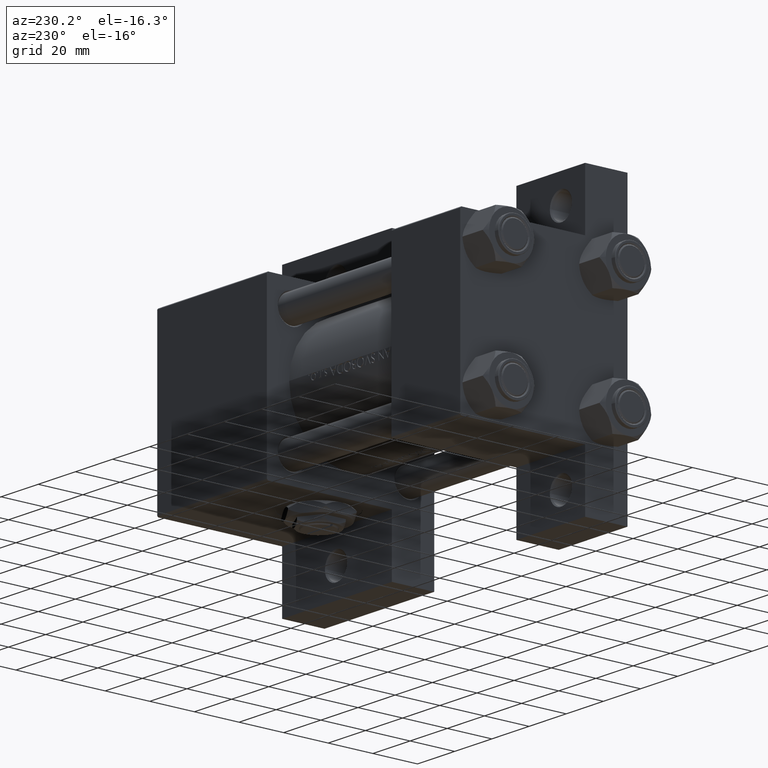
[diagram: clean part render]
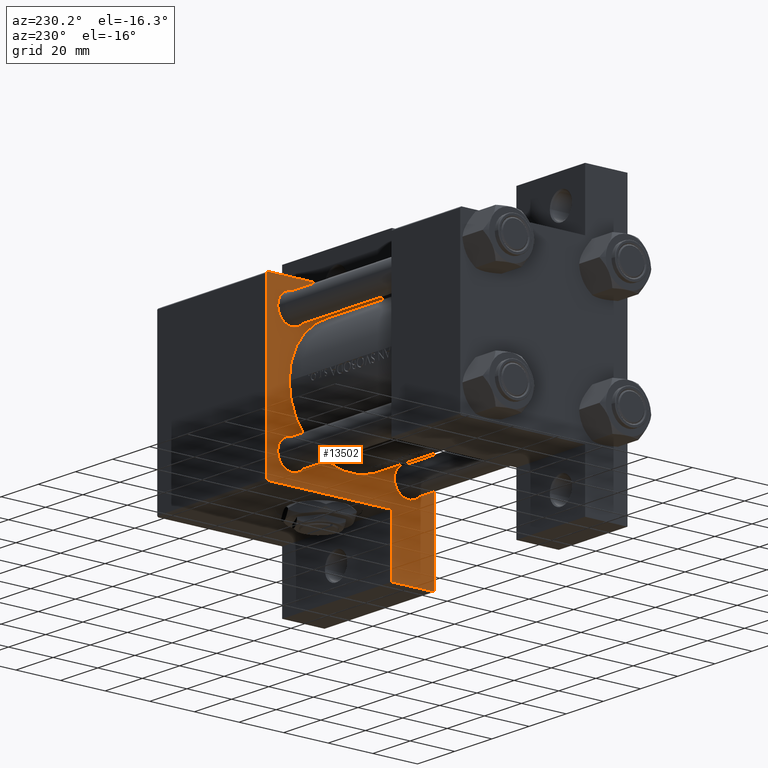
[diagram: same view with one face highlighted and labeled with its STEP entity id]
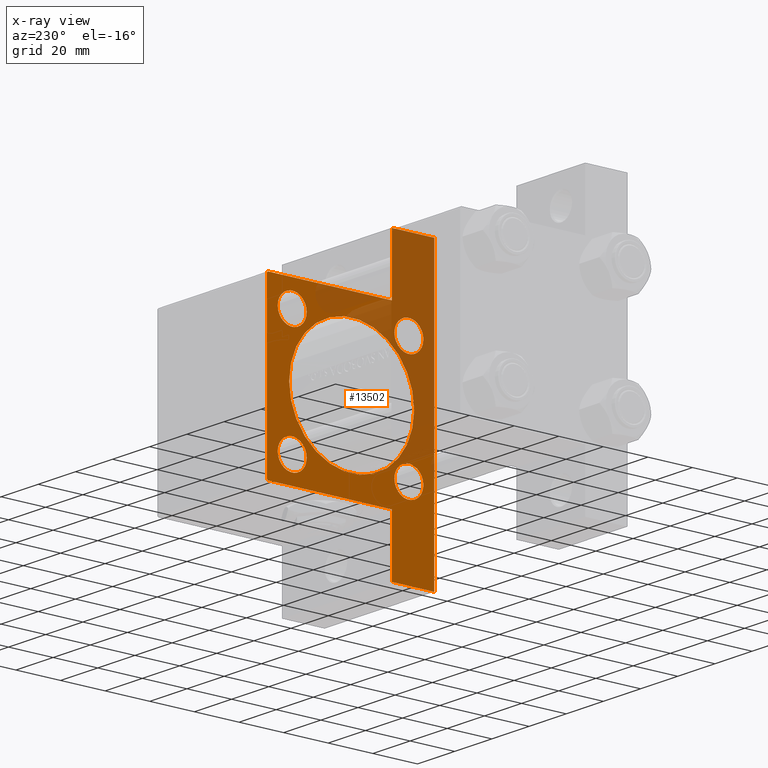
[diagram: x-ray of the same camera — body ghosted, the highlighted face saturated]
A machine part, auxiliary view. The second image highlights one B-rep face of the part: STEP entity #13502.
The next image is the same camera in x-ray: the body ghosted, the highlighted face saturated — about 40% of this face is hidden behind the body in this view.
In plain terms, the highlighted planar face has unit normal (-1, 0, 0).
Its self-contained STEP definition (entity closure, byte-faithful):
#288 = DIRECTION ( 'NONE',  ( 1.000000000000000000, 0.000000000000000000, 0.000000000000000000 ) ) ;
#1120 = CARTESIAN_POINT ( 'NONE',  ( 104.0000000000000142, 37.00000000000002842, 37.49999999999999289 ) ) ;
#1746 = ORIENTED_EDGE ( 'NONE', *, *, #34918, .T. ) ;
#1967 = AXIS2_PLACEMENT_3D ( 'NONE', #23735, #34689, #12039 ) ;
#2143 = DIRECTION ( 'NONE',  ( 1.000000000000000000, 0.000000000000000000, -0.000000000000000000 ) ) ;
#2283 = FACE_BOUND ( 'NONE', #34809, .T. ) ;
#2473 = EDGE_CURVE ( 'NONE', #14349, #3100, #16176, .T. ) ;
#2533 = CARTESIAN_POINT ( 'NONE',  ( 104.0000000000000000, -63.50000000000000000, -18.50000000000000000 ) ) ;
#3005 = FACE_OUTER_BOUND ( 'NONE', #15370, .T. ) ;
#3100 = VERTEX_POINT ( 'NONE', #19858 ) ;
#3102 = VERTEX_POINT ( 'NONE', #24087 ) ;
#3175 = CARTESIAN_POINT ( 'NONE',  ( 104.0000000000000142, 26.14999999999999858, 26.15000000000000213 ) ) ;
#4086 = LINE ( 'NONE', #33978, #27296 ) ;
#4807 = CARTESIAN_POINT ( 'NONE',  ( 104.0000000000000142, 3.429011037612589276E-15, -28.50000000000000000 ) ) ;
#4842 = CARTESIAN_POINT ( 'NONE',  ( 104.0000000000000142, -37.50000000000000000, 37.00000000000000711 ) ) ;
#5345 = EDGE_CURVE ( 'NONE', #3100, #14349, #40149, .T. ) ;
#6058 = AXIS2_PLACEMENT_3D ( 'NONE', #3175, #18364, #37056 ) ;
#6589 = DIRECTION ( 'NONE',  ( 0.000000000000000000, -9.251858538542972814E-17, -1.000000000000000000 ) ) ;
#6619 = AXIS2_PLACEMENT_3D ( 'NONE', #16638, #12419, #46777 ) ;
#6812 = CARTESIAN_POINT ( 'NONE',  ( 104.0000000000000142, -26.14999999999999147, 19.65000000000000213 ) ) ;
#6987 = FACE_BOUND ( 'NONE', #45550, .T. ) ;
#7343 = CARTESIAN_POINT ( 'NONE',  ( 104.0000000000000142, -26.14999999999999147, 32.65000000000001990 ) ) ;
#8072 = CARTESIAN_POINT ( 'NONE',  ( 104.0000000000000142, 37.50000000000000000, 37.49999999999999289 ) ) ;
#8896 = EDGE_CURVE ( 'NONE', #18962, #22449, #43593, .T. ) ;
#9163 = EDGE_CURVE ( 'NONE', #38671, #48142, #32297, .T. ) ;
#9365 = DIRECTION ( 'NONE',  ( -0.000000000000000000, 0.7071067811865671127, 0.7071067811865279218 ) ) ;
#9765 = ORIENTED_EDGE ( 'NONE', *, *, #34351, .T. ) ;
#9916 = EDGE_CURVE ( 'NONE', #18798, #10522, #29899, .T. ) ;
#9917 = CARTESIAN_POINT ( 'NONE',  ( 104.0000000000000142, 37.50000000000000000, 37.00000000000002132 ) ) ;
#10223 = ORIENTED_EDGE ( 'NONE', *, *, #8896, .T. ) ;
#10522 = VERTEX_POINT ( 'NONE', #19932 ) ;
#11776 = DIRECTION ( 'NONE',  ( 0.000000000000000000, 0.000000000000000000, 1.000000000000000000 ) ) ;
#11804 = DIRECTION ( 'NONE',  ( -0.000000000000000000, 1.000000000000000000, -0.000000000000000000 ) ) ;
#12039 = DIRECTION ( 'NONE',  ( 0.000000000000000000, 0.000000000000000000, 1.000000000000000000 ) ) ;
#12385 = VECTOR ( 'NONE', #43078, 1000.000000000000000 ) ;
#12419 = DIRECTION ( 'NONE',  ( 1.000000000000000000, 0.000000000000000000, -0.000000000000000000 ) ) ;
#13261 = AXIS2_PLACEMENT_3D ( 'NONE', #49105, #18959, #37643 ) ;
#13304 = AXIS2_PLACEMENT_3D ( 'NONE', #13728, #40380, #25658 ) ;
#13309 = VERTEX_POINT ( 'NONE', #15874 ) ;
#13502 = ADVANCED_FACE ( 'NONE', ( #17953, #2283, #48587, #6987, #47858, #3005 ), #18439, .T. ) ;
#13650 = DIRECTION ( 'NONE',  ( 0.000000000000000000, 0.000000000000000000, 1.000000000000000000 ) ) ;
#13728 = CARTESIAN_POINT ( 'NONE',  ( 104.0000000000000142, 0.000000000000000000, 0.000000000000000000 ) ) ;
#14003 = VERTEX_POINT ( 'NONE', #33093 ) ;
#14113 = AXIS2_PLACEMENT_3D ( 'NONE', #35246, #46707, #24536 ) ;
#14349 = VERTEX_POINT ( 'NONE', #32175 ) ;
#15370 = EDGE_LOOP ( 'NONE', ( #46414, #10223, #34709, #42178, #36198, #25460, #47398, #20462, #17750, #23469 ) ) ;
#15566 = AXIS2_PLACEMENT_3D ( 'NONE', #44520, #21122, #13650 ) ;
#15705 = CARTESIAN_POINT ( 'NONE',  ( 104.0000000000000142, -26.14999999999999147, -19.65000000000000213 ) ) ;
#15874 = CARTESIAN_POINT ( 'NONE',  ( 104.0000000000000000, -63.50000000000000000, -37.50000000000000000 ) ) ;
#15925 = ORIENTED_EDGE ( 'NONE', *, *, #2473, .T. ) ;
#16176 = CIRCLE ( 'NONE', #6619, 6.500000000000008882 ) ;
#16189 = EDGE_CURVE ( 'NONE', #28887, #28213, #40360, .T. ) ;
#16417 = EDGE_CURVE ( 'NONE', #36736, #27059, #32414, .T. ) ;
#16479 = CARTESIAN_POINT ( 'NONE',  ( 104.0000000000000142, 37.50000000000000000, -18.50000000000000355 ) ) ;
#16638 = CARTESIAN_POINT ( 'NONE',  ( 104.0000000000000142, 26.14999999999999858, -26.15000000000000213 ) ) ;
#17750 = ORIENTED_EDGE ( 'NONE', *, *, #29962, .F. ) ;
#17799 = LINE ( 'NONE', #32998, #19204 ) ;
#17953 = FACE_BOUND ( 'NONE', #28343, .T. ) ;
#18193 = CARTESIAN_POINT ( 'NONE',  ( 104.0000000000000142, 63.50000000000000000, -18.50000000000000000 ) ) ;
#18364 = DIRECTION ( 'NONE',  ( 1.000000000000000000, 0.000000000000000000, -0.000000000000000000 ) ) ;
#18439 = PLANE ( 'NONE',  #13304 ) ;
#18798 = VERTEX_POINT ( 'NONE', #34259 ) ;
#18959 = DIRECTION ( 'NONE',  ( 1.000000000000000000, 0.000000000000000000, -0.000000000000000000 ) ) ;
#18962 = VERTEX_POINT ( 'NONE', #1120 ) ;
#19204 = VECTOR ( 'NONE', #6589, 1000.000000000000000 ) ;
#19858 = CARTESIAN_POINT ( 'NONE',  ( 104.0000000000000142, 26.14999999999999858, -19.64999999999999503 ) ) ;
#19932 = CARTESIAN_POINT ( 'NONE',  ( 104.0000000000000142, 26.14999999999999858, 32.65000000000000568 ) ) ;
#20080 = EDGE_CURVE ( 'NONE', #43393, #36736, #30729, .T. ) ;
#20462 = ORIENTED_EDGE ( 'NONE', *, *, #39869, .T. ) ;
#20882 = AXIS2_PLACEMENT_3D ( 'NONE', #29274, #2143, #21315 ) ;
#20929 = CARTESIAN_POINT ( 'NONE',  ( 104.0000000000000142, 37.25000000000000711, 37.25000000000000711 ) ) ;
#21122 = DIRECTION ( 'NONE',  ( 1.000000000000000000, 0.000000000000000000, -0.000000000000000000 ) ) ;
#21315 = DIRECTION ( 'NONE',  ( 0.000000000000000000, 0.000000000000000000, 1.000000000000000000 ) ) ;
#22083 = CARTESIAN_POINT ( 'NONE',  ( 104.0000000000000000, -63.50000000000000000, -18.50000000000000000 ) ) ;
#22221 = LINE ( 'NONE', #44650, #48086 ) ;
#22449 = VERTEX_POINT ( 'NONE', #9917 ) ;
#22464 = ORIENTED_EDGE ( 'NONE', *, *, #16189, .T. ) ;
#22771 = LINE ( 'NONE', #8072, #33482 ) ;
#22833 = EDGE_CURVE ( 'NONE', #24463, #37691, #43471, .T. ) ;
#22877 = EDGE_LOOP ( 'NONE', ( #33673, #15925 ) ) ;
#23245 = ORIENTED_EDGE ( 'NONE', *, *, #27204, .T. ) ;
#23469 = ORIENTED_EDGE ( 'NONE', *, *, #22833, .T. ) ;
#23735 = CARTESIAN_POINT ( 'NONE',  ( 104.0000000000000142, 26.14999999999999858, -26.15000000000000213 ) ) ;
#24062 = DIRECTION ( 'NONE',  ( 1.000000000000000000, 0.000000000000000000, -0.000000000000000000 ) ) ;
#24087 = CARTESIAN_POINT ( 'NONE',  ( 104.0000000000000142, -37.50000000000000000, -18.50000000000000000 ) ) ;
#24463 = VERTEX_POINT ( 'NONE', #4842 ) ;
#24536 = DIRECTION ( 'NONE',  ( 0.000000000000000000, 0.000000000000000000, -1.000000000000000000 ) ) ;
#24828 = CARTESIAN_POINT ( 'NONE',  ( 104.0000000000000142, 63.50000000000000000, -37.50000000000000000 ) ) ;
#24904 = EDGE_CURVE ( 'NONE', #18962, #37691, #22771, .T. ) ;
#24927 = CIRCLE ( 'NONE', #31301, 6.500000000000008882 ) ;
#25460 = ORIENTED_EDGE ( 'NONE', *, *, #34632, .T. ) ;
#25658 = DIRECTION ( 'NONE',  ( 0.000000000000000000, 0.000000000000000000, 1.000000000000000000 ) ) ;
#26121 = VECTOR ( 'NONE', #36640, 1000.000000000000000 ) ;
#26471 = CIRCLE ( 'NONE', #30467, 28.00000000000000000 ) ;
#26863 = ORIENTED_EDGE ( 'NONE', *, *, #31887, .T. ) ;
#27059 = VERTEX_POINT ( 'NONE', #24828 ) ;
#27172 = DIRECTION ( 'NONE',  ( 0.000000000000000000, 0.000000000000000000, -1.000000000000000000 ) ) ;
#27204 = EDGE_CURVE ( 'NONE', #10522, #18798, #47860, .T. ) ;
#27296 = VECTOR ( 'NONE', #34458, 1000.000000000000000 ) ;
#27310 = EDGE_CURVE ( 'NONE', #33376, #13309, #36419, .T. ) ;
#28213 = VERTEX_POINT ( 'NONE', #36666 ) ;
#28343 = EDGE_LOOP ( 'NONE', ( #9765, #30917 ) ) ;
#28887 = VERTEX_POINT ( 'NONE', #4807 ) ;
#29274 = CARTESIAN_POINT ( 'NONE',  ( 104.0000000000000142, -26.14999999999999147, -26.15000000000000924 ) ) ;
#29899 = CIRCLE ( 'NONE', #6058, 6.499999999999995559 ) ;
#29962 = EDGE_CURVE ( 'NONE', #24463, #3102, #17799, .T. ) ;
#30252 = DIRECTION ( 'NONE',  ( 0.000000000000000000, -1.000000000000000000, -1.850371707708594316E-16 ) ) ;
#30354 = VECTOR ( 'NONE', #47874, 1000.000000000000000 ) ;
#30467 = AXIS2_PLACEMENT_3D ( 'NONE', #38643, #288, #27172 ) ;
#30729 = LINE ( 'NONE', #45930, #34879 ) ;
#30917 = ORIENTED_EDGE ( 'NONE', *, *, #9163, .T. ) ;
#31301 = AXIS2_PLACEMENT_3D ( 'NONE', #47726, #24062, #47472 ) ;
#31817 = VECTOR ( 'NONE', #9365, 1000.000000000000000 ) ;
#31887 = EDGE_CURVE ( 'NONE', #14003, #44519, #40746, .T. ) ;
#32175 = CARTESIAN_POINT ( 'NONE',  ( 104.0000000000000142, 26.14999999999999858, -32.65000000000001279 ) ) ;
#32297 = CIRCLE ( 'NONE', #15566, 6.500000000000008882 ) ;
#32414 = LINE ( 'NONE', #18193, #26121 ) ;
#32998 = CARTESIAN_POINT ( 'NONE',  ( 104.0000000000000142, -37.50000000000000000, 37.49999999999997868 ) ) ;
#33039 = DIRECTION ( 'NONE',  ( 1.000000000000000000, 0.000000000000000000, -0.000000000000000000 ) ) ;
#33093 = CARTESIAN_POINT ( 'NONE',  ( 104.0000000000000142, -26.14999999999999147, -32.65000000000002700 ) ) ;
#33202 = DIRECTION ( 'NONE',  ( 0.000000000000000000, 0.000000000000000000, -1.000000000000000000 ) ) ;
#33376 = VERTEX_POINT ( 'NONE', #22083 ) ;
#33482 = VECTOR ( 'NONE', #30252, 1000.000000000000000 ) ;
#33673 = ORIENTED_EDGE ( 'NONE', *, *, #5345, .T. ) ;
#33696 = LINE ( 'NONE', #48890, #12385 ) ;
#33756 = CARTESIAN_POINT ( 'NONE',  ( 104.0000000000000142, -37.00000000000000000, 37.49999999999997868 ) ) ;
#33978 = CARTESIAN_POINT ( 'NONE',  ( 104.0000000000000142, 37.50000000000000000, -37.50000000000000000 ) ) ;
#34259 = CARTESIAN_POINT ( 'NONE',  ( 104.0000000000000142, 26.14999999999999858, 19.65000000000000568 ) ) ;
#34351 = EDGE_CURVE ( 'NONE', #48142, #38671, #24927, .T. ) ;
#34458 = DIRECTION ( 'NONE',  ( 0.000000000000000000, -1.000000000000000000, 0.000000000000000000 ) ) ;
#34632 = EDGE_CURVE ( 'NONE', #27059, #13309, #4086, .T. ) ;
#34689 = DIRECTION ( 'NONE',  ( 1.000000000000000000, 0.000000000000000000, -0.000000000000000000 ) ) ;
#34709 = ORIENTED_EDGE ( 'NONE', *, *, #36784, .T. ) ;
#34723 = CIRCLE ( 'NONE', #13261, 6.500000000000008882 ) ;
#34809 = EDGE_LOOP ( 'NONE', ( #23245, #37098 ) ) ;
#34879 = VECTOR ( 'NONE', #11804, 1000.000000000000000 ) ;
#34918 = EDGE_CURVE ( 'NONE', #28213, #28887, #26471, .T. ) ;
#35246 = CARTESIAN_POINT ( 'NONE',  ( 104.0000000000000142, 0.000000000000000000, -0.5000000000000004441 ) ) ;
#35480 = VECTOR ( 'NONE', #36122, 1000.000000000000114 ) ;
#36122 = DIRECTION ( 'NONE',  ( 0.000000000000000000, 0.7071067811865474617, -0.7071067811865474617 ) ) ;
#36198 = ORIENTED_EDGE ( 'NONE', *, *, #16417, .T. ) ;
#36419 = LINE ( 'NONE', #2533, #30354 ) ;
#36640 = DIRECTION ( 'NONE',  ( 0.000000000000000000, 0.000000000000000000, -1.000000000000000000 ) ) ;
#36666 = CARTESIAN_POINT ( 'NONE',  ( 104.0000000000000142, 0.000000000000000000, 27.50000000000000000 ) ) ;
#36736 = VERTEX_POINT ( 'NONE', #40435 ) ;
#36784 = EDGE_CURVE ( 'NONE', #22449, #43393, #22221, .T. ) ;
#37056 = DIRECTION ( 'NONE',  ( 0.000000000000000000, 0.000000000000000000, 1.000000000000000000 ) ) ;
#37098 = ORIENTED_EDGE ( 'NONE', *, *, #9916, .T. ) ;
#37643 = DIRECTION ( 'NONE',  ( 0.000000000000000000, 0.000000000000000000, 1.000000000000000000 ) ) ;
#37691 = VERTEX_POINT ( 'NONE', #33756 ) ;
#38182 = CARTESIAN_POINT ( 'NONE',  ( 104.0000000000000142, 26.14999999999999858, 26.15000000000000213 ) ) ;
#38643 = CARTESIAN_POINT ( 'NONE',  ( 104.0000000000000142, 0.000000000000000000, -0.5000000000000004441 ) ) ;
#38671 = VERTEX_POINT ( 'NONE', #6812 ) ;
#38817 = EDGE_LOOP ( 'NONE', ( #1746, #22464 ) ) ;
#39869 = EDGE_CURVE ( 'NONE', #33376, #3102, #33696, .T. ) ;
#40149 = CIRCLE ( 'NONE', #1967, 6.500000000000008882 ) ;
#40360 = CIRCLE ( 'NONE', #14113, 28.00000000000000000 ) ;
#40380 = DIRECTION ( 'NONE',  ( -1.000000000000000000, -0.000000000000000000, 0.000000000000000000 ) ) ;
#40435 = CARTESIAN_POINT ( 'NONE',  ( 104.0000000000000142, 63.50000000000000000, -18.50000000000000000 ) ) ;
#40746 = CIRCLE ( 'NONE', #20882, 6.500000000000008882 ) ;
#42178 = ORIENTED_EDGE ( 'NONE', *, *, #20080, .T. ) ;
#43078 = DIRECTION ( 'NONE',  ( 5.337610695313252371E-16, 1.000000000000000000, 0.000000000000000000 ) ) ;
#43393 = VERTEX_POINT ( 'NONE', #16479 ) ;
#43471 = LINE ( 'NONE', #47724, #31817 ) ;
#43593 = LINE ( 'NONE', #20929, #35480 ) ;
#44519 = VERTEX_POINT ( 'NONE', #15705 ) ;
#44520 = CARTESIAN_POINT ( 'NONE',  ( 104.0000000000000142, -26.14999999999999147, 26.15000000000000924 ) ) ;
#44650 = CARTESIAN_POINT ( 'NONE',  ( 104.0000000000000142, 37.50000000000000000, 37.49999999999999289 ) ) ;
#45464 = AXIS2_PLACEMENT_3D ( 'NONE', #38182, #33039, #11776 ) ;
#45550 = EDGE_LOOP ( 'NONE', ( #48792, #26863 ) ) ;
#45930 = CARTESIAN_POINT ( 'NONE',  ( 104.0000000000000142, 63.50000000000000000, -18.50000000000000000 ) ) ;
#46414 = ORIENTED_EDGE ( 'NONE', *, *, #24904, .F. ) ;
#46685 = EDGE_CURVE ( 'NONE', #44519, #14003, #34723, .T. ) ;
#46707 = DIRECTION ( 'NONE',  ( 1.000000000000000000, 0.000000000000000000, 0.000000000000000000 ) ) ;
#46777 = DIRECTION ( 'NONE',  ( 0.000000000000000000, 0.000000000000000000, 1.000000000000000000 ) ) ;
#47398 = ORIENTED_EDGE ( 'NONE', *, *, #27310, .F. ) ;
#47472 = DIRECTION ( 'NONE',  ( 0.000000000000000000, 0.000000000000000000, 1.000000000000000000 ) ) ;
#47724 = CARTESIAN_POINT ( 'NONE',  ( 104.0000000000000142, -37.24999999999896261, 37.25000000000102318 ) ) ;
#47726 = CARTESIAN_POINT ( 'NONE',  ( 104.0000000000000142, -26.14999999999999147, 26.15000000000000924 ) ) ;
#47858 = FACE_BOUND ( 'NONE', #38817, .T. ) ;
#47860 = CIRCLE ( 'NONE', #45464, 6.499999999999995559 ) ;
#47874 = DIRECTION ( 'NONE',  ( 0.000000000000000000, 0.000000000000000000, -1.000000000000000000 ) ) ;
#48086 = VECTOR ( 'NONE', #33202, 1000.000000000000000 ) ;
#48142 = VERTEX_POINT ( 'NONE', #7343 ) ;
#48587 = FACE_BOUND ( 'NONE', #22877, .T. ) ;
#48792 = ORIENTED_EDGE ( 'NONE', *, *, #46685, .T. ) ;
#48890 = CARTESIAN_POINT ( 'NONE',  ( 104.0000000000000000, -63.50000000000000000, -18.50000000000000000 ) ) ;
#49105 = CARTESIAN_POINT ( 'NONE',  ( 104.0000000000000142, -26.14999999999999147, -26.15000000000000924 ) ) ;